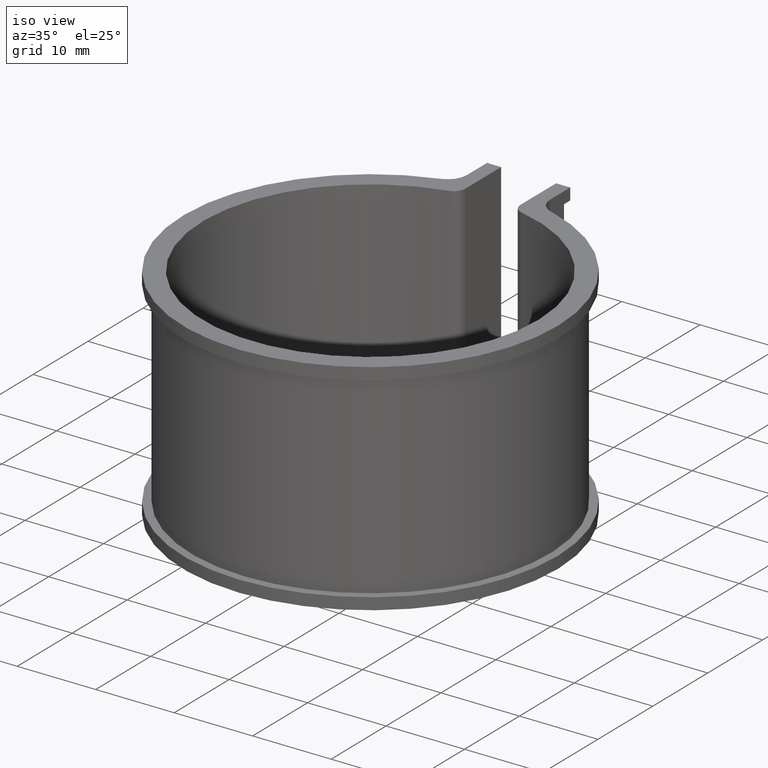
[diagram: clean part render]
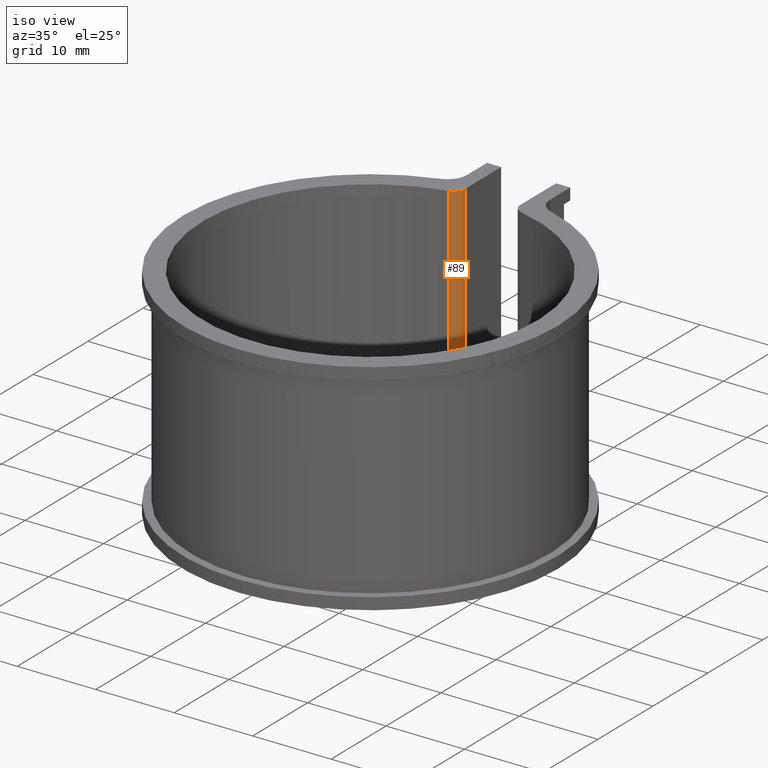
[diagram: same view with one face highlighted and labeled with its STEP entity id]
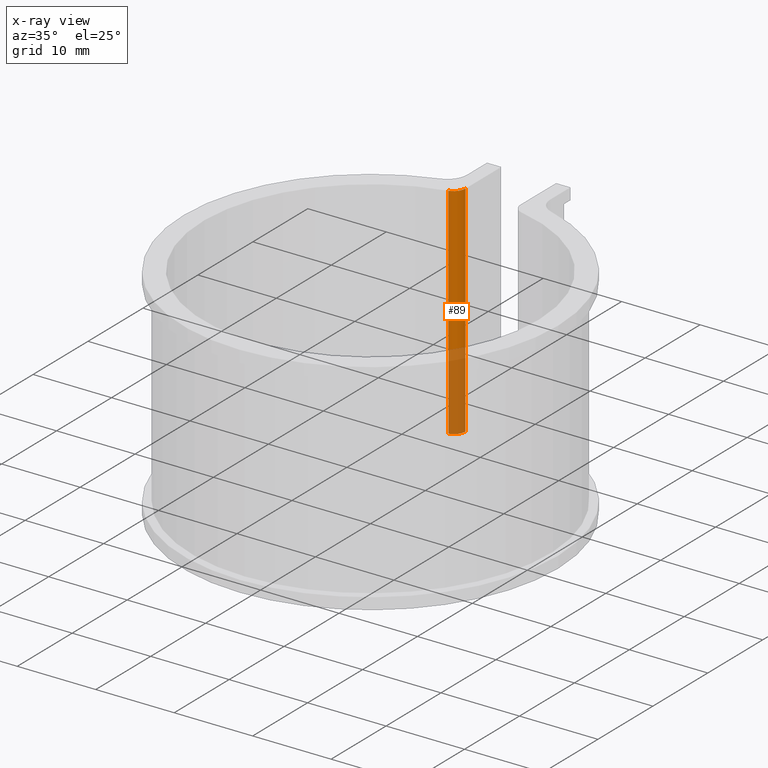
[diagram: x-ray of the same camera — body ghosted, the highlighted face saturated]
A machine part, iso view. The second image highlights one B-rep face of the part: STEP entity #89.
The next image is the same camera in x-ray: the body ghosted, the highlighted face saturated — about 35% of this face is hidden behind the body in this view.
In plain terms, the highlighted cylindrical surface (edge-blend (fillet) strip) has radius 1.5 mm, axis along (0, 0, -1).
Its self-contained STEP definition (entity closure, byte-faithful):
#89 = ADVANCED_FACE( '', ( #130 ), #131, .T. );
#130 = FACE_OUTER_BOUND( '', #182, .T. );
#131 = CYLINDRICAL_SURFACE( '', #183, 1.50000000000000 );
#182 = EDGE_LOOP( '', ( #324, #325, #326, #327 ) );
#183 = AXIS2_PLACEMENT_3D( '', #328, #329, #330 );
#324 = ORIENTED_EDGE( '', *, *, #480, .F. );
#325 = ORIENTED_EDGE( '', *, *, #481, .F. );
#326 = ORIENTED_EDGE( '', *, *, #482, .F. );
#327 = ORIENTED_EDGE( '', *, *, #483, .F. );
#328 = CARTESIAN_POINT( '', ( -5.00000000000001, 22.2962440783196, -25.0000000000000 ) );
#329 = DIRECTION( '', ( 0.000000000000000, 0.000000000000000, -1.00000000000000 ) );
#330 = DIRECTION( '', ( 1.00000000000000, 0.000000000000000, 0.000000000000000 ) );
#480 = EDGE_CURVE( '', #592, #593, #594, .F. );
#481 = EDGE_CURVE( '', #595, #592, #596, .F. );
#482 = EDGE_CURVE( '', #597, #595, #598, .T. );
#483 = EDGE_CURVE( '', #593, #597, #599, .T. );
#592 = VERTEX_POINT( '', #748 );
#593 = VERTEX_POINT( '', #749 );
#594 = CIRCLE( '', #750, 1.50000000000000 );
#595 = VERTEX_POINT( '', #751 );
#596 = LINE( '', #752, #753 );
#597 = VERTEX_POINT( '', #754 );
#598 = CIRCLE( '', #755, 1.50000000000000 );
#599 = LINE( '', #756, #757 );
#748 = CARTESIAN_POINT( '', ( -3.50000000000000, 22.2962440783196, -26.5000000000000 ) );
#749 = CARTESIAN_POINT( '', ( -4.67177242888403, 20.8325956705524, -26.5000000000000 ) );
#750 = AXIS2_PLACEMENT_3D( '', #872, #873, #874 );
#751 = CARTESIAN_POINT( '', ( -3.50000000000000, 22.2962440783196, 1.50000000000000 ) );
#752 = CARTESIAN_POINT( '', ( -3.50000000000000, 22.2962440783196, -25.0000000000000 ) );
#753 = VECTOR( '', #875, 1000.00000000000 );
#754 = CARTESIAN_POINT( '', ( -4.67177242888403, 20.8325956705524, 1.50000000000000 ) );
#755 = AXIS2_PLACEMENT_3D( '', #876, #877, #878 );
#756 = CARTESIAN_POINT( '', ( -4.67177242888403, 20.8325956705524, -25.0000000000000 ) );
#757 = VECTOR( '', #879, 1000.00000000000 );
#872 = CARTESIAN_POINT( '', ( -5.00000000000001, 22.2962440783196, -26.5000000000000 ) );
#873 = DIRECTION( '', ( 0.000000000000000, 0.000000000000000, 1.00000000000000 ) );
#874 = DIRECTION( '', ( 1.00000000000000, 0.000000000000000, 0.000000000000000 ) );
#875 = DIRECTION( '', ( 0.000000000000000, 0.000000000000000, 1.00000000000000 ) );
#876 = CARTESIAN_POINT( '', ( -5.00000000000001, 22.2962440783196, 1.50000000000000 ) );
#877 = DIRECTION( '', ( 0.000000000000000, 0.000000000000000, 1.00000000000000 ) );
#878 = DIRECTION( '', ( 1.00000000000000, 0.000000000000000, 0.000000000000000 ) );
#879 = DIRECTION( '', ( 0.000000000000000, 0.000000000000000, 1.00000000000000 ) );